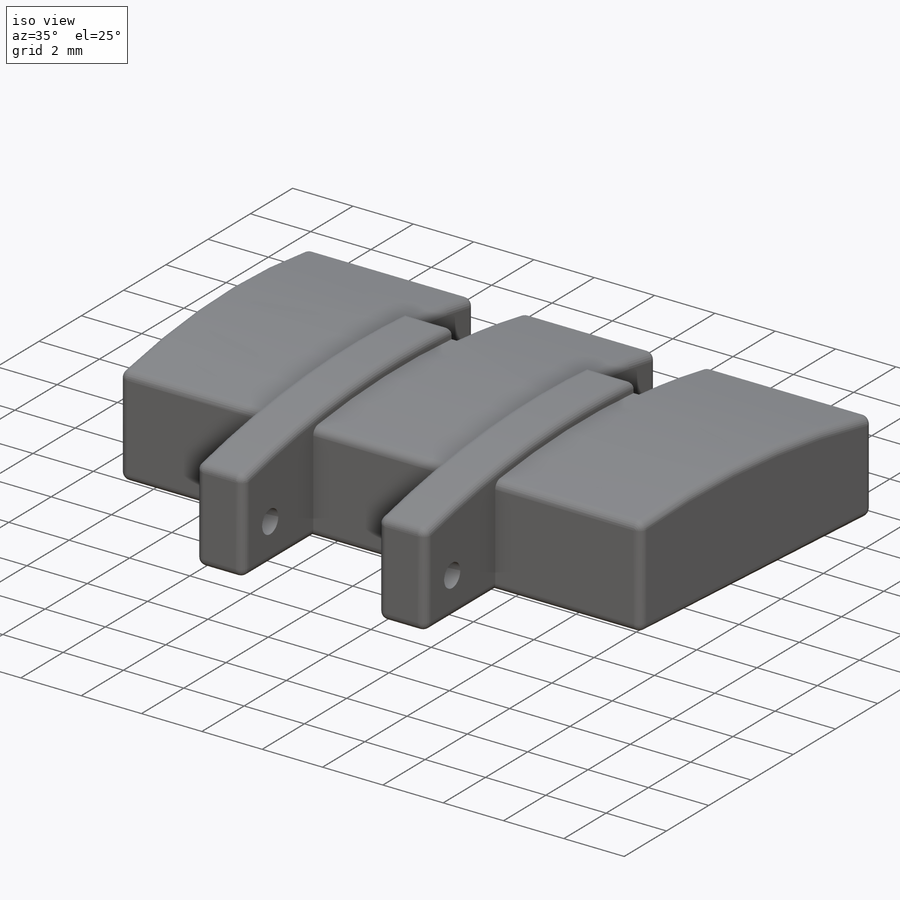
[diagram: iso view]
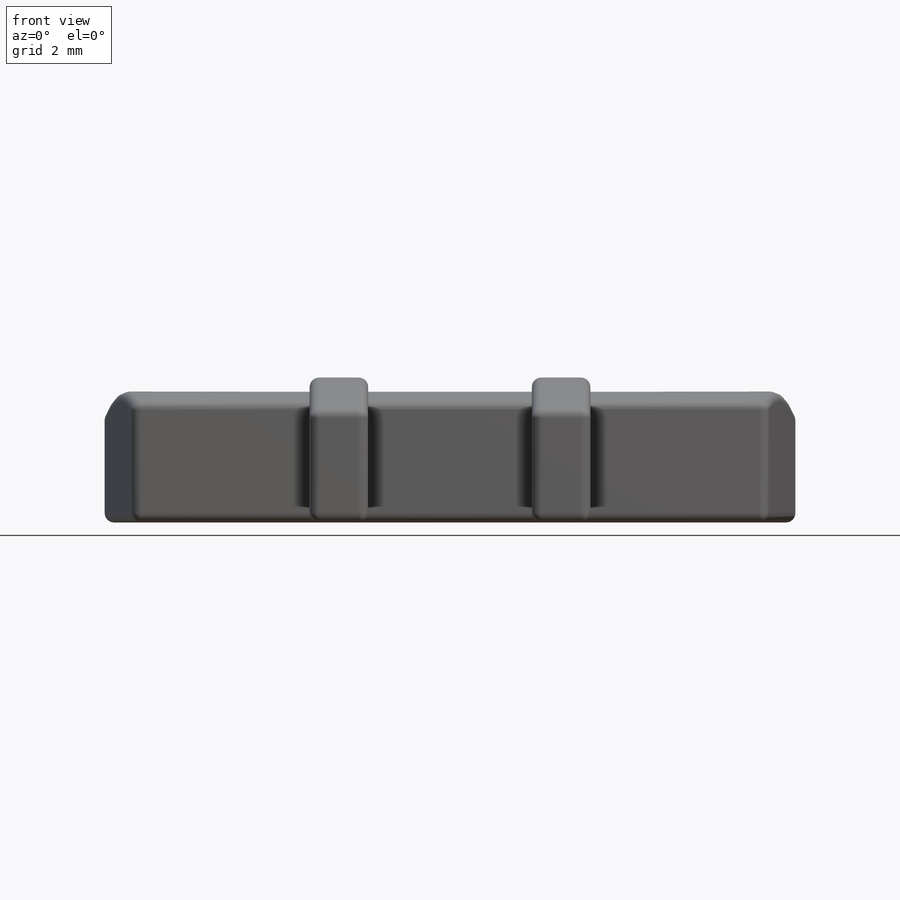
[diagram: front view]
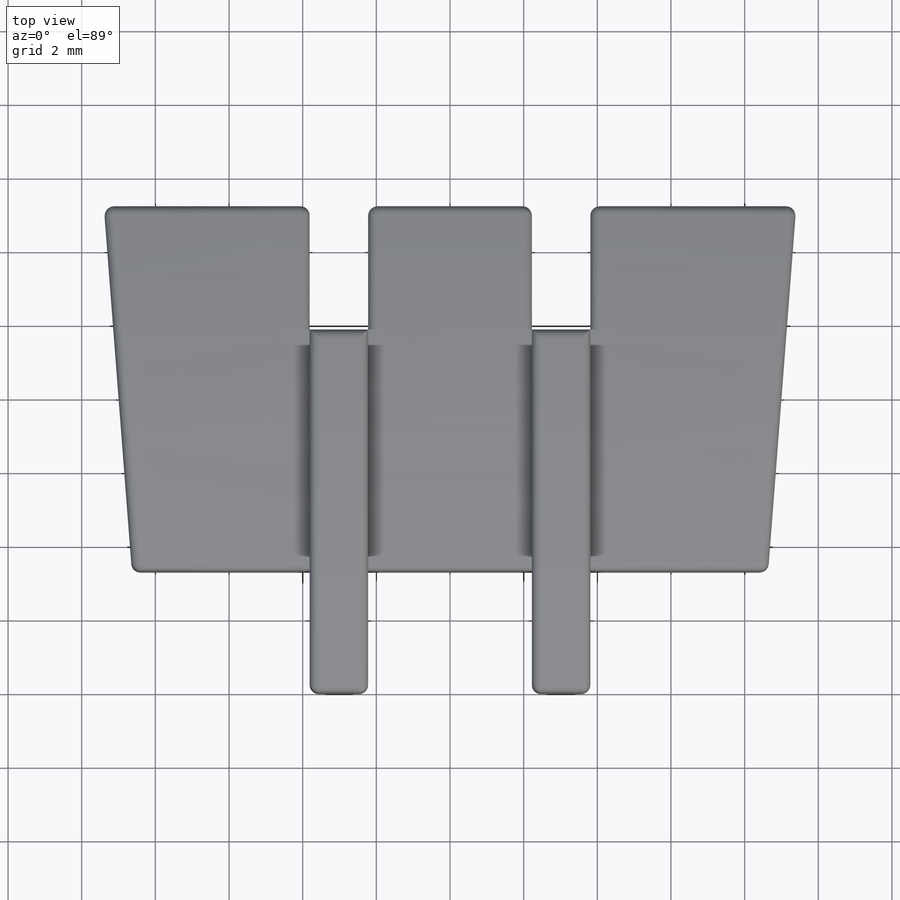
[diagram: top view]
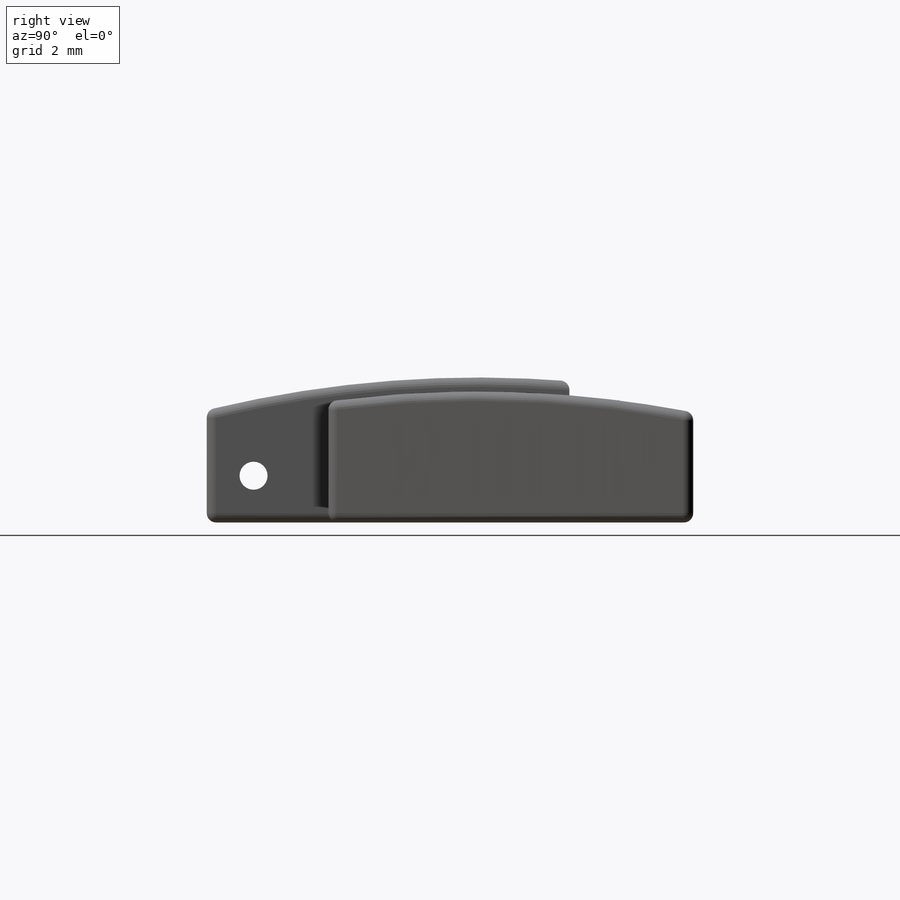
[diagram: right view]
SOLIDWORKS PART (.sldprt)
format: sldprt  version: not decoded by parser v0  size: 466,944 bytes
history: native  units: mm
features: sketch x5, cut_extrude x3, extrude x2, material x1, mirror x1, fillet x1 (+11 scaffold rows collapsed)
feature tree (24):
  scaffold x11  (default folders/planes/origin — collapsed)
  material  "Material <not specified>"
  sketch  "Sketch1"  dims[D1=7.62mm D2=18.796mm D3=17.272mm D4=9.906mm D5=13.208mm D6=1.5875mm D7=1.5875mm D8=3.302mm D9=~3.361326mm D10=1.5875mm]
  extrude  "Extrude1"  Depth=3.556mm
  sketch  "Sketch2"  dims[D1=30.48mm D2=30.48mm]
  cut_extrude  "Extrude3"  [1 undecoded]
  sketch  "Sketch3"  dims[D1=0.381mm]
  extrude  "Extrude10"  Depth=3.937mm
  mirror  "Mirror1"
  sketch  "Sketch4"  dims[D1=0.762mm D2=1.016mm D3=1.524mm]
  cut_extrude  "Extrude11"  Depth=0.508mm
  sketch  "Sketch6"  dims[D1=0.762mm D2=1.27mm D3=1.27mm]
  cut_extrude  "Extrude12"  [1 undecoded]
  fillet  "Fillet1"  Radius=0.254mm
decode coverage: 9 of 12 modeling features carry decoded parameters
note: ~ marks probable driven/reference dimensions
note: 2 parameter values undecoded
note: suppression state not decoded; provenance and decode notes live in map.json
